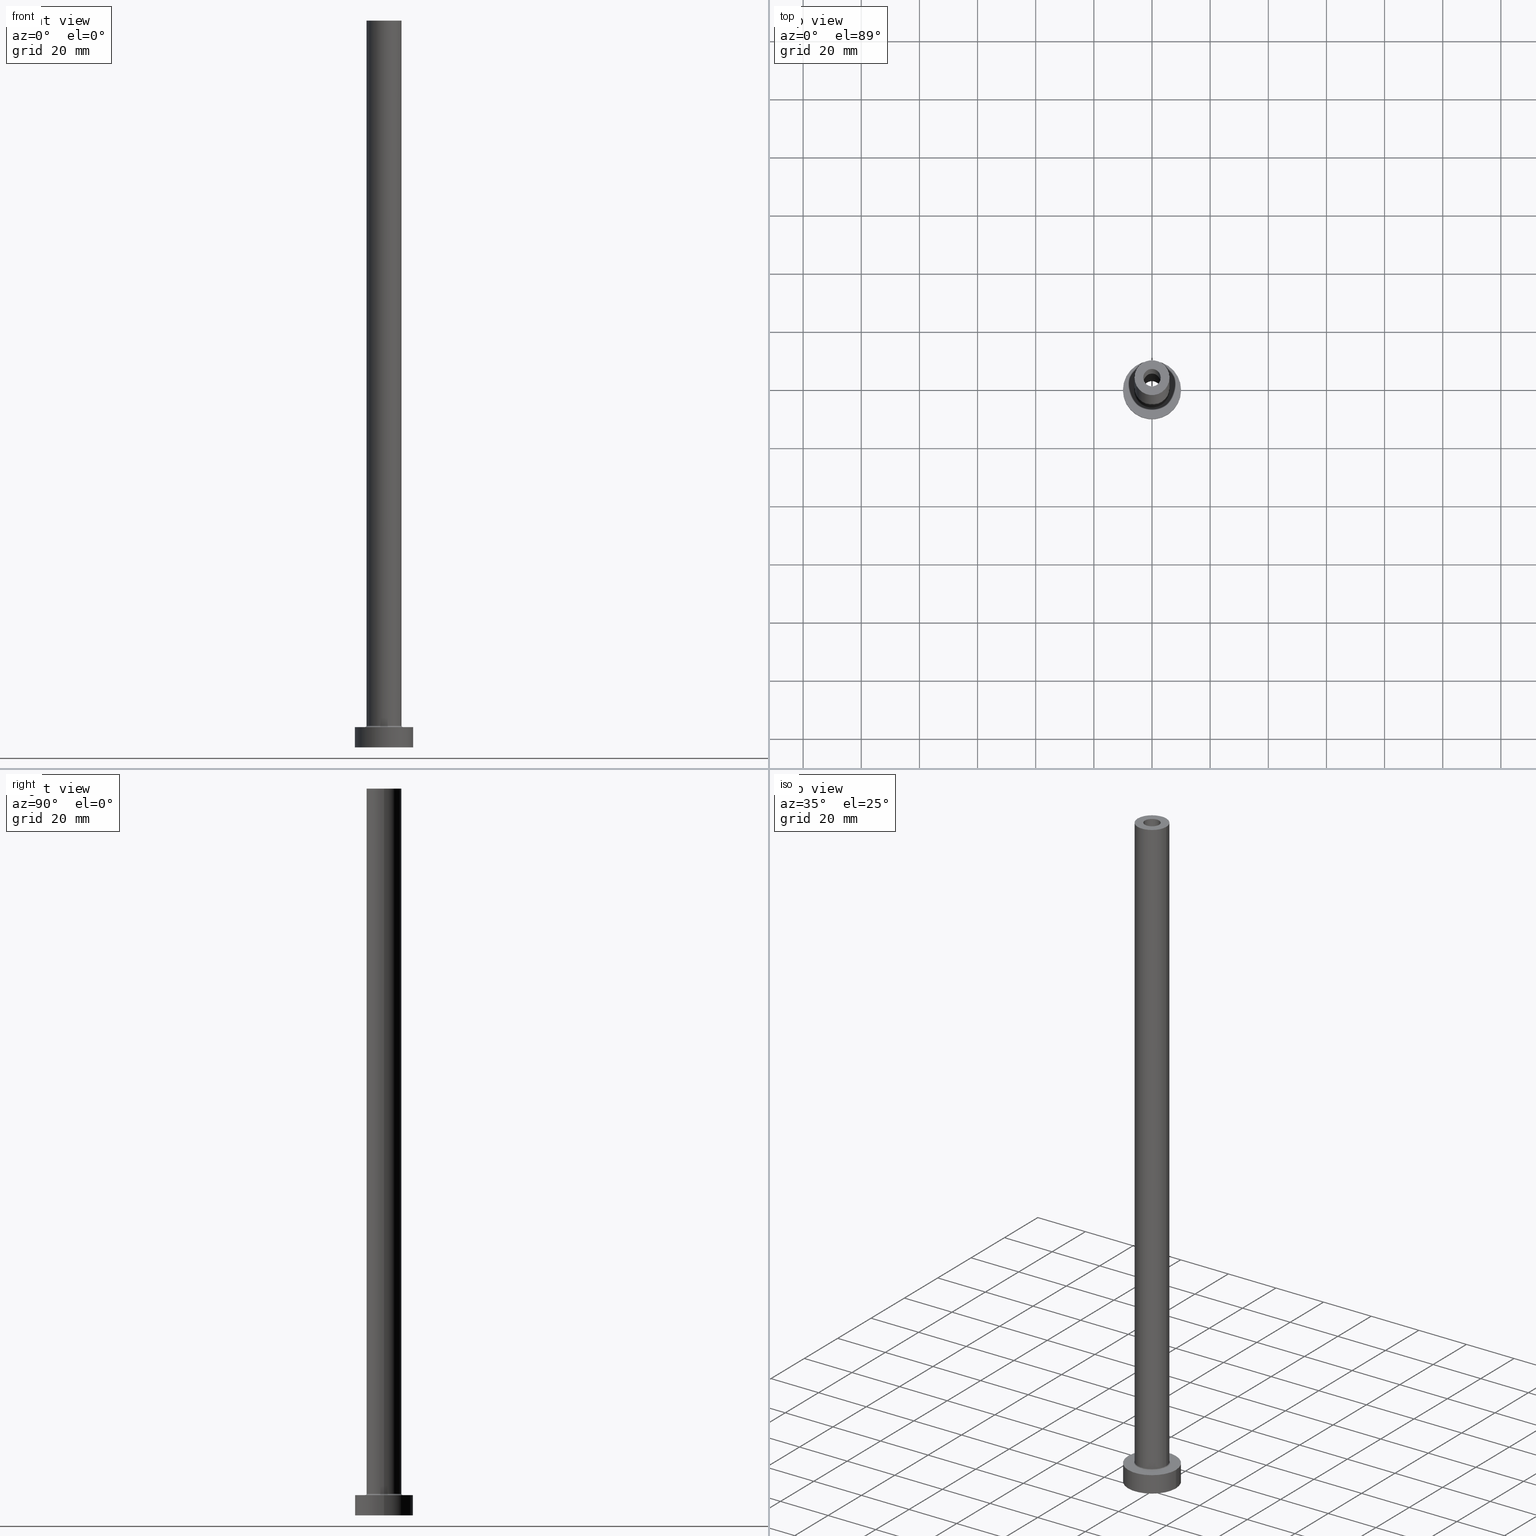
[diagram: canonical four-view strip — front | top / right | iso, engineering-drawing reading convention]
A machine part, canonical four-view strip (front | top / right | iso — engineering-drawing reading convention). The complete STEP part file that produces these views, byte-faithful:
ISO-10303-21;
HEADER;
FILE_DESCRIPTION (( 'STEP AP203' ),
    '1' );
FILE_NAME ('b0cd.STEP',
    '2023-02-13T15:01:19',
    ( '' ),
    ( '' ),
    'SwSTEP 2.0',
    'SolidWorks 2019',
    '' );
FILE_SCHEMA (( 'CONFIG_CONTROL_DESIGN' ));
ENDSEC;

DATA;
#1 = FACE_OUTER_BOUND ( 'NONE', #61, .T. ) ;
#2 = AXIS2_PLACEMENT_3D ( 'NONE', #52, #440, #335 ) ;
#3 = DIRECTION ( 'NONE',  ( 0.000000000000000000, 0.000000000000000000, -1.000000000000000000 ) ) ;
#4 = CARTESIAN_POINT ( 'NONE',  ( -3.000000000000000444, 0.000000000000000000, 205.0000000000000284 ) ) ;
#5 = DIRECTION ( 'NONE',  ( 1.000000000000000000, 0.000000000000000000, 0.000000000000000000 ) ) ;
#6 = CARTESIAN_POINT ( 'NONE',  ( -6.500000000000000888, 7.960204194457796463E-16, 7.500000000000007105 ) ) ;
#7 = AXIS2_PLACEMENT_3D ( 'NONE', #231, #12, #154 ) ;
#8 = CARTESIAN_POINT ( 'NONE',  ( -10.00000000000000000, 0.000000000000000000, 0.000000000000000000 ) ) ;
#9 = FACE_OUTER_BOUND ( 'NONE', #202, .T. ) ;
#10 = CARTESIAN_POINT ( 'NONE',  ( 3.150000000000000355, 3.857637417314163182E-16, 213.9095454429505310 ) ) ;
#11 = ORIENTED_EDGE ( 'NONE', *, *, #206, .T. ) ;
#12 = DIRECTION ( 'NONE',  ( -0.000000000000000000, -0.000000000000000000, -1.000000000000000000 ) ) ;
#13 = CYLINDRICAL_SURFACE ( 'NONE', #128, 6.000000000000000888 ) ;
#14 = VECTOR ( 'NONE', #26, 1000.000000000000000 ) ;
#15 = CARTESIAN_POINT ( 'NONE',  ( 0.000000000000000000, 0.000000000000000000, 7.500000000000007105 ) ) ;
#16 = CALENDAR_DATE ( 2023, 13, 2 ) ;
#17 = EDGE_CURVE ( 'NONE', #126, #93, #286, .T. ) ;
#18 = CARTESIAN_POINT ( 'NONE',  ( 0.000000000000000000, 0.000000000000000000, 250.0000000000000000 ) ) ;
#19 = CARTESIAN_POINT ( 'NONE',  ( -10.00000000000000000, 0.000000000000000000, 7.000000000000000000 ) ) ;
#20 = LOCAL_TIME ( 16, 1, 19.00000000000000000, #453 ) ;
#21 = APPROVAL_STATUS ( 'not_yet_approved' ) ;
#22 = EDGE_LOOP ( 'NONE', ( #299, #389, #422, #266 ) ) ;
#23 = ADVANCED_FACE ( 'NONE', ( #239, #270 ), #97, .T. ) ;
#24 = UNCERTAINTY_MEASURE_WITH_UNIT (LENGTH_MEASURE( 1.000000000000000082E-05 ), #438, 'distance_accuracy_value', 'NONE');
#25 = VERTEX_POINT ( 'NONE', #430 ) ;
#26 = DIRECTION ( 'NONE',  ( 0.000000000000000000, 0.000000000000000000, -1.000000000000000000 ) ) ;
#27 = CARTESIAN_POINT ( 'NONE',  ( 3.150000000000000355, 3.857637417314163182E-16, 0.000000000000000000 ) ) ;
#28 = CALENDAR_DATE ( 2023, 13, 2 ) ;
#29 = TOROIDAL_SURFACE ( 'NONE', #315, 6.500000000000000888, 0.5000000000000000000 ) ;
#30 = VERTEX_POINT ( 'NONE', #88 ) ;
#31 = CARTESIAN_POINT ( 'NONE',  ( 0.000000000000000000, 0.000000000000000000, 0.000000000000000000 ) ) ;
#32 = DATE_AND_TIME ( #28, #425 ) ;
#33 = APPLICATION_CONTEXT ( 'configuration controlled 3d designs of mechanical parts and assemblies' ) ;
#34 = EDGE_LOOP ( 'NONE', ( #204, #193, #274, #443 ) ) ;
#35 = CARTESIAN_POINT ( 'NONE',  ( 0.000000000000000000, 0.000000000000000000, 0.000000000000000000 ) ) ;
#36 = CIRCLE ( 'NONE', #281, 6.000000000000000888 ) ;
#37 = DIRECTION ( 'NONE',  ( 0.000000000000000000, 0.000000000000000000, 1.000000000000000000 ) ) ;
#38 = FACE_OUTER_BOUND ( 'NONE', #396, .T. ) ;
#39 = ADVANCED_FACE ( 'NONE', ( #377 ), #408, .F. ) ;
#40 = CARTESIAN_POINT ( 'NONE',  ( 0.000000000000000000, 0.000000000000000000, 250.0000000000000000 ) ) ;
#41 = DIRECTION ( 'NONE',  ( 0.000000000000000000, 0.000000000000000000, 1.000000000000000000 ) ) ;
#42 = EDGE_CURVE ( 'NONE', #105, #100, #114, .T. ) ;
#43 = CARTESIAN_POINT ( 'NONE',  ( 0.000000000000000000, 0.000000000000000000, 0.000000000000000000 ) ) ;
#44 = DIRECTION ( 'NONE',  ( -0.000000000000000000, -0.000000000000000000, -1.000000000000000000 ) ) ;
#45 = APPROVAL_PERSON_ORGANIZATION ( #177, #394, #161 ) ;
#46 = DIRECTION ( 'NONE',  ( 0.000000000000000000, 0.000000000000000000, -1.000000000000000000 ) ) ;
#47 = FACE_OUTER_BOUND ( 'NONE', #70, .T. ) ;
#48 = CIRCLE ( 'NONE', #82, 6.000000000000000888 ) ;
#49 = CALENDAR_DATE ( 2023, 13, 2 ) ;
#50 = CARTESIAN_POINT ( 'NONE',  ( -3.150000000000000355, 0.000000000000000000, 213.9095454429505310 ) ) ;
#51 = PLANE ( 'NONE',  #221 ) ;
#52 = CARTESIAN_POINT ( 'NONE',  ( 0.000000000000000000, 0.000000000000000000, 7.500000000000007105 ) ) ;
#53 = CIRCLE ( 'NONE', #112, 0.5000000000000004441 ) ;
#54 = PERSON_AND_ORGANIZATION_ROLE ( 'classification_officer' ) ;
#55 = FACE_OUTER_BOUND ( 'NONE', #22, .T. ) ;
#56 = DIRECTION ( 'NONE',  ( 0.000000000000000000, 0.000000000000000000, 1.000000000000000000 ) ) ;
#57 = PLANE ( 'NONE',  #258 ) ;
#58 = EDGE_LOOP ( 'NONE', ( #452, #90, #172, #170 ) ) ;
#59 = CARTESIAN_POINT ( 'NONE',  ( -3.000000000000000444, 0.000000000000000000, 250.0000000000000000 ) ) ;
#60 = AXIS2_PLACEMENT_3D ( 'NONE', #449, #333, #149 ) ;
#61 = EDGE_LOOP ( 'NONE', ( #383, #384 ) ) ;
#62 = VERTEX_POINT ( 'NONE', #340 ) ;
#63 = PERSON_AND_ORGANIZATION ( #392, #101 ) ;
#64 = EDGE_LOOP ( 'NONE', ( #166, #125 ) ) ;
#65 = CARTESIAN_POINT ( 'NONE',  ( 0.000000000000000000, 0.000000000000000000, 7.000000000000000000 ) ) ;
#66 = AXIS2_PLACEMENT_3D ( 'NONE', #412, #291, #376 ) ;
#67 = EDGE_LOOP ( 'NONE', ( #178, #98, #455, #127 ) ) ;
#68 = CALENDAR_DATE ( 2023, 13, 2 ) ;
#69 = CARTESIAN_POINT ( 'NONE',  ( 0.000000000000000000, 0.000000000000000000, 205.0000000000000284 ) ) ;
#70 = EDGE_LOOP ( 'NONE', ( #278, #423 ) ) ;
#71 = CIRCLE ( 'NONE', #66, 0.5000000000000004441 ) ;
#72 = DIRECTION ( 'NONE',  ( 0.000000000000000000, 0.000000000000000000, 1.000000000000000000 ) ) ;
#73 = EDGE_CURVE ( 'NONE', #105, #208, #324, .T. ) ;
#74 = EDGE_CURVE ( 'NONE', #62, #341, #48, .T. ) ;
#75 = DIRECTION ( 'NONE',  ( -1.000000000000000000, 0.000000000000000000, 0.000000000000000000 ) ) ;
#76 = EDGE_CURVE ( 'NONE', #420, #233, #345, .T. ) ;
#77 = ADVANCED_FACE ( 'NONE', ( #329, #325 ), #57, .F. ) ;
#78 = AXIS2_PLACEMENT_3D ( 'NONE', #399, #431, #322 ) ;
#79 = DIRECTION ( 'NONE',  ( -0.000000000000000000, -0.000000000000000000, -1.000000000000000000 ) ) ;
#80 = EDGE_CURVE ( 'NONE', #208, #105, #318, .T. ) ;
#81 = DIRECTION ( 'NONE',  ( 0.000000000000000000, 0.000000000000000000, -1.000000000000000000 ) ) ;
#82 = AXIS2_PLACEMENT_3D ( 'NONE', #18, #373, #417 ) ;
#83 = PERSON_AND_ORGANIZATION ( #392, #101 ) ;
#84 = ORIENTED_EDGE ( 'NONE', *, *, #159, .F. ) ;
#85 = AXIS2_PLACEMENT_3D ( 'NONE', #43, #362, #5 ) ;
#86 = CARTESIAN_POINT ( 'NONE',  ( -6.000000000000000888, 0.000000000000000000, 7.500000000000007105 ) ) ;
#87 =( NAMED_UNIT ( * ) PLANE_ANGLE_UNIT ( ) SI_UNIT ( $, .RADIAN. ) );
#88 = CARTESIAN_POINT ( 'NONE',  ( -3.150000000000000355, 0.000000000000000000, 205.0000000000000284 ) ) ;
#89 = AXIS2_PLACEMENT_3D ( 'NONE', #65, #461, #136 ) ;
#90 = ORIENTED_EDGE ( 'NONE', *, *, #103, .F. ) ;
#91 = DIRECTION ( 'NONE',  ( -0.000000000000000000, -0.000000000000000000, -1.000000000000000000 ) ) ;
#92 = PRODUCT ( 'b0cd', 'b0cd', '', ( #137 ) ) ;
#93 = VERTEX_POINT ( 'NONE', #27 ) ;
#94 = EDGE_LOOP ( 'NONE', ( #272, #198 ) ) ;
#95 = ORIENTED_EDGE ( 'NONE', *, *, #120, .T. ) ;
#96 = DATE_AND_TIME ( #68, #20 ) ;
#97 = PLANE ( 'NONE',  #89 ) ;
#98 = ORIENTED_EDGE ( 'NONE', *, *, #195, .T. ) ;
#99 = DIRECTION ( 'NONE',  ( 0.000000000000000000, 0.000000000000000000, 1.000000000000000000 ) ) ;
#100 = VERTEX_POINT ( 'NONE', #388 ) ;
#101 = ORGANIZATION ( 'NEUR�EN�', 'NEUR�EN�', '' ) ;
#102 = CC_DESIGN_APPROVAL ( #394, ( #156 ) ) ;
#103 = EDGE_CURVE ( 'NONE', #459, #271, #385, .T. ) ;
#104 = DIRECTION ( 'NONE',  ( -1.000000000000000000, 0.000000000000000000, 0.000000000000000000 ) ) ;
#105 = VERTEX_POINT ( 'NONE', #146 ) ;
#106 = DIRECTION ( 'NONE',  ( 1.000000000000000000, 0.000000000000000000, 0.000000000000000000 ) ) ;
#107 = FACE_OUTER_BOUND ( 'NONE', #67, .T. ) ;
#108 = CARTESIAN_POINT ( 'NONE',  ( 0.000000000000000000, 0.000000000000000000, 7.500000000000007105 ) ) ;
#109 = CC_DESIGN_PERSON_AND_ORGANIZATION_ASSIGNMENT ( #83, #54, ( #282 ) ) ;
#110 = PERSON_AND_ORGANIZATION ( #392, #101 ) ;
#111 = DIRECTION ( 'NONE',  ( 1.000000000000000000, 0.000000000000000000, 0.000000000000000000 ) ) ;
#112 = AXIS2_PLACEMENT_3D ( 'NONE', #6, #397, #179 ) ;
#113 = CARTESIAN_POINT ( 'NONE',  ( 0.000000000000000000, 0.000000000000000000, 0.000000000000000000 ) ) ;
#114 = LINE ( 'NONE', #331, #171 ) ;
#115 = DIRECTION ( 'NONE',  ( -0.000000000000000000, -0.000000000000000000, -1.000000000000000000 ) ) ;
#116 = AXIS2_PLACEMENT_3D ( 'NONE', #255, #414, #446 ) ;
#117 = CYLINDRICAL_SURFACE ( 'NONE', #237, 3.150000000000000355 ) ;
#118 = DIRECTION ( 'NONE',  ( -1.000000000000000000, 0.000000000000000000, 0.000000000000000000 ) ) ;
#119 = CIRCLE ( 'NONE', #175, 3.150000000000000355 ) ;
#120 = EDGE_CURVE ( 'NONE', #93, #126, #444, .T. ) ;
#121 = EDGE_LOOP ( 'NONE', ( #296, #227, #343, #232 ) ) ;
#122 = DIRECTION ( 'NONE',  ( 0.000000000000000000, 0.000000000000000000, 1.000000000000000000 ) ) ;
#123 = DIRECTION ( 'NONE',  ( 0.000000000000000000, 0.000000000000000000, -1.000000000000000000 ) ) ;
#124 = ORIENTED_EDGE ( 'NONE', *, *, #159, .T. ) ;
#125 = ORIENTED_EDGE ( 'NONE', *, *, #120, .F. ) ;
#126 = VERTEX_POINT ( 'NONE', #275 ) ;
#127 = ORIENTED_EDGE ( 'NONE', *, *, #153, .F. ) ;
#128 = AXIS2_PLACEMENT_3D ( 'NONE', #151, #91, #228 ) ;
#129 = ORIENTED_EDGE ( 'NONE', *, *, #182, .F. ) ;
#130 = DIRECTION ( 'NONE',  ( 1.000000000000000000, 0.000000000000000000, 0.000000000000000000 ) ) ;
#131 = ORIENTED_EDGE ( 'NONE', *, *, #42, .F. ) ;
#132 = ORIENTED_EDGE ( 'NONE', *, *, #73, .T. ) ;
#133 = ORIENTED_EDGE ( 'NONE', *, *, #162, .T. ) ;
#134 = SHAPE_DEFINITION_REPRESENTATION ( #342, #321 ) ;
#135 = APPROVAL_STATUS ( 'not_yet_approved' ) ;
#136 = DIRECTION ( 'NONE',  ( 1.000000000000000000, 0.000000000000000000, -0.000000000000000000 ) ) ;
#137 = MECHANICAL_CONTEXT ( 'NONE', #210, 'mechanical' ) ;
#138 = VERTEX_POINT ( 'NONE', #4 ) ;
#139 = PLANE ( 'NONE',  #456 ) ;
#140 = PERSON_AND_ORGANIZATION ( #392, #101 ) ;
#141 = AXIS2_PLACEMENT_3D ( 'NONE', #194, #81, #118 ) ;
#142 = CYLINDRICAL_SURFACE ( 'NONE', #144, 3.000000000000000444 ) ;
#143 = LINE ( 'NONE', #244, #375 ) ;
#144 = AXIS2_PLACEMENT_3D ( 'NONE', #40, #3, #75 ) ;
#145 = CYLINDRICAL_SURFACE ( 'NONE', #253, 10.00000000000000000 ) ;
#146 = CARTESIAN_POINT ( 'NONE',  ( 3.000000000000000444, 3.673940397442059868E-16, 250.0000000000000000 ) ) ;
#147 = DIRECTION ( 'NONE',  ( 0.000000000000000000, 0.000000000000000000, -1.000000000000000000 ) ) ;
#148 = ADVANCED_FACE ( 'NONE', ( #216 ), #29, .F. ) ;
#149 = DIRECTION ( 'NONE',  ( 1.000000000000000000, 0.000000000000000000, 0.000000000000000000 ) ) ;
#150 = AXIS2_PLACEMENT_3D ( 'NONE', #287, #380, #152 ) ;
#151 = CARTESIAN_POINT ( 'NONE',  ( 0.000000000000000000, 0.000000000000000000, 250.0000000000000000 ) ) ;
#152 = DIRECTION ( 'NONE',  ( 1.000000000000000000, 0.000000000000000000, 0.000000000000000000 ) ) ;
#153 = EDGE_CURVE ( 'NONE', #459, #309, #143, .T. ) ;
#154 = DIRECTION ( 'NONE',  ( -1.000000000000000000, 0.000000000000000000, 0.000000000000000000 ) ) ;
#155 = VECTOR ( 'NONE', #416, 1000.000000000000000 ) ;
#156 = PRODUCT_DEFINITION_FORMATION_WITH_SPECIFIED_SOURCE ( 'LIBOVOLN�', '', #92, .NOT_KNOWN. ) ;
#157 = PERSON_AND_ORGANIZATION_ROLE ( 'creator' ) ;
#158 = CC_DESIGN_PERSON_AND_ORGANIZATION_ASSIGNMENT ( #63, #201, ( #401 ) ) ;
#159 = EDGE_CURVE ( 'NONE', #420, #25, #53, .T. ) ;
#160 = DIRECTION ( 'NONE',  ( 0.000000000000000000, 0.000000000000000000, 1.000000000000000000 ) ) ;
#161 = APPROVAL_ROLE ( '' ) ;
#162 = EDGE_CURVE ( 'NONE', #100, #138, #273, .T. ) ;
#163 = CARTESIAN_POINT ( 'NONE',  ( 10.00000000000000000, 1.224646799147353256E-15, 0.000000000000000000 ) ) ;
#164 = DIRECTION ( 'NONE',  ( 1.000000000000000000, 0.000000000000000000, 0.000000000000000000 ) ) ;
#165 = APPROVAL_PERSON_ORGANIZATION ( #140, #339, #174 ) ;
#166 = ORIENTED_EDGE ( 'NONE', *, *, #17, .F. ) ;
#167 = APPROVAL_ROLE ( '' ) ;
#168 = EDGE_CURVE ( 'NONE', #269, #93, #323, .T. ) ;
#169 = FACE_OUTER_BOUND ( 'NONE', #34, .T. ) ;
#170 = ORIENTED_EDGE ( 'NONE', *, *, #289, .T. ) ;
#171 = VECTOR ( 'NONE', #123, 1000.000000000000000 ) ;
#172 = ORIENTED_EDGE ( 'NONE', *, *, #153, .T. ) ;
#173 = EDGE_LOOP ( 'NONE', ( #382, #426 ) ) ;
#174 = APPROVAL_ROLE ( '' ) ;
#175 = AXIS2_PLACEMENT_3D ( 'NONE', #69, #242, #395 ) ;
#176 = ORIENTED_EDGE ( 'NONE', *, *, #367, .T. ) ;
#177 = PERSON_AND_ORGANIZATION ( #392, #101 ) ;
#178 = ORIENTED_EDGE ( 'NONE', *, *, #241, .F. ) ;
#179 = DIRECTION ( 'NONE',  ( -1.000000000000000000, 1.224646799147351482E-16, 0.000000000000000000 ) ) ;
#180 = AXIS2_PLACEMENT_3D ( 'NONE', #184, #37, #256 ) ;
#181 = AXIS2_PLACEMENT_3D ( 'NONE', #200, #247, #317 ) ;
#182 = EDGE_CURVE ( 'NONE', #341, #420, #280, .T. ) ;
#183 = CARTESIAN_POINT ( 'NONE',  ( -6.000000000000000888, 0.000000000000000000, 250.0000000000000000 ) ) ;
#184 = CARTESIAN_POINT ( 'NONE',  ( 0.000000000000000000, 0.000000000000000000, 7.500000000000007105 ) ) ;
#185 = CYLINDRICAL_SURFACE ( 'NONE', #78, 10.00000000000000000 ) ;
#186 = CARTESIAN_POINT ( 'NONE',  ( 0.000000000000000000, 0.000000000000000000, 205.0000000000000284 ) ) ;
#187 = FACE_OUTER_BOUND ( 'NONE', #264, .T. ) ;
#188 = DATE_AND_TIME ( #49, #238 ) ;
#189 = VECTOR ( 'NONE', #403, 1000.000000000000000 ) ;
#190 = LINE ( 'NONE', #50, #398 ) ;
#191 = CC_DESIGN_PERSON_AND_ORGANIZATION_ASSIGNMENT ( #290, #157, ( #156 ) ) ;
#192 = EDGE_CURVE ( 'NONE', #460, #309, #432, .T. ) ;
#193 = ORIENTED_EDGE ( 'NONE', *, *, #249, .F. ) ;
#194 = CARTESIAN_POINT ( 'NONE',  ( 0.000000000000000000, 0.000000000000000000, 250.0000000000000000 ) ) ;
#195 = EDGE_CURVE ( 'NONE', #271, #460, #357, .T. ) ;
#196 = DIRECTION ( 'NONE',  ( 1.000000000000000000, 0.000000000000000000, 0.000000000000000000 ) ) ;
#197 = ADVANCED_FACE ( 'NONE', ( #214 ), #355, .F. ) ;
#198 = ORIENTED_EDGE ( 'NONE', *, *, #192, .F. ) ;
#199 = ORIENTED_EDGE ( 'NONE', *, *, #251, .T. ) ;
#200 = CARTESIAN_POINT ( 'NONE',  ( 0.000000000000000000, 0.000000000000000000, 7.000000000000000000 ) ) ;
#201 = PERSON_AND_ORGANIZATION_ROLE ( 'creator' ) ;
#202 = EDGE_LOOP ( 'NONE', ( #131, #132, #386, #427 ) ) ;
#203 = CC_DESIGN_DATE_AND_TIME_ASSIGNMENT ( #294, #445, ( #282 ) ) ;
#204 = ORIENTED_EDGE ( 'NONE', *, *, #226, .F. ) ;
#205 = CIRCLE ( 'NONE', #405, 3.150000000000000355 ) ;
#206 = EDGE_CURVE ( 'NONE', #30, #269, #119, .T. ) ;
#207 = ADVANCED_FACE ( 'NONE', ( #38 ), #245, .F. ) ;
#208 = VERTEX_POINT ( 'NONE', #250 ) ;
#209 = DIRECTION ( 'NONE',  ( 1.000000000000000000, 0.000000000000000000, 0.000000000000000000 ) ) ;
#210 = APPLICATION_CONTEXT ( 'configuration controlled 3d designs of mechanical parts and assemblies' ) ;
#211 = DIRECTION ( 'NONE',  ( 1.000000000000000000, 0.000000000000000000, 0.000000000000000000 ) ) ;
#212 = ORIENTED_EDGE ( 'NONE', *, *, #433, .T. ) ;
#213 = CIRCLE ( 'NONE', #230, 10.00000000000000000 ) ;
#214 = FACE_OUTER_BOUND ( 'NONE', #229, .T. ) ;
#215 = DIRECTION ( 'NONE',  ( 1.000000000000000000, 0.000000000000000000, -0.000000000000000000 ) ) ;
#216 = FACE_OUTER_BOUND ( 'NONE', #223, .T. ) ;
#217 = CC_DESIGN_APPROVAL ( #339, ( #401 ) ) ;
#218 = FACE_BOUND ( 'NONE', #349, .T. ) ;
#219 = CARTESIAN_POINT ( 'NONE',  ( 0.000000000000000000, 0.000000000000000000, 7.000000000000000000 ) ) ;
#220 = CARTESIAN_POINT ( 'NONE',  ( 6.000000000000000888, 7.347880794884120722E-16, 250.0000000000000000 ) ) ;
#221 = AXIS2_PLACEMENT_3D ( 'NONE', #328, #259, #413 ) ;
#222 = CC_DESIGN_APPROVAL ( #279, ( #282 ) ) ;
#223 = EDGE_LOOP ( 'NONE', ( #243, #124, #301, #378 ) ) ;
#224 = CC_DESIGN_DATE_AND_TIME_ASSIGNMENT ( #96, #306, ( #401 ) ) ;
#225 = EDGE_CURVE ( 'NONE', #303, #25, #441, .T. ) ;
#226 = EDGE_CURVE ( 'NONE', #62, #233, #372, .T. ) ;
#227 = ORIENTED_EDGE ( 'NONE', *, *, #42, .T. ) ;
#228 = DIRECTION ( 'NONE',  ( -1.000000000000000000, 0.000000000000000000, 0.000000000000000000 ) ) ;
#229 = EDGE_LOOP ( 'NONE', ( #11, #338, #95, #236 ) ) ;
#230 = AXIS2_PLACEMENT_3D ( 'NONE', #418, #122, #164 ) ;
#231 = CARTESIAN_POINT ( 'NONE',  ( 0.000000000000000000, 0.000000000000000000, 250.0000000000000000 ) ) ;
#232 = ORIENTED_EDGE ( 'NONE', *, *, #267, .F. ) ;
#233 = VERTEX_POINT ( 'NONE', #406 ) ;
#234 = AXIS2_PLACEMENT_3D ( 'NONE', #363, #429, #436 ) ;
#235 = DESIGN_CONTEXT ( 'detailed design', #33, 'design' ) ;
#236 = ORIENTED_EDGE ( 'NONE', *, *, #407, .F. ) ;
#237 = AXIS2_PLACEMENT_3D ( 'NONE', #260, #334, #379 ) ;
#238 = LOCAL_TIME ( 16, 1, 19.00000000000000000, #371 ) ;
#239 = FACE_BOUND ( 'NONE', #374, .T. ) ;
#240 = ADVANCED_FACE ( 'NONE', ( #218, #47 ), #51, .T. ) ;
#241 = EDGE_CURVE ( 'NONE', #271, #459, #213, .T. ) ;
#242 = DIRECTION ( 'NONE',  ( 0.000000000000000000, 0.000000000000000000, 1.000000000000000000 ) ) ;
#243 = ORIENTED_EDGE ( 'NONE', *, *, #76, .F. ) ;
#244 = CARTESIAN_POINT ( 'NONE',  ( -10.00000000000000000, 0.000000000000000000, 7.000000000000000000 ) ) ;
#245 = TOROIDAL_SURFACE ( 'NONE', #180, 6.500000000000000888, 0.5000000000000000000 ) ;
#246 = FACE_OUTER_BOUND ( 'NONE', #58, .T. ) ;
#247 = DIRECTION ( 'NONE',  ( 0.000000000000000000, 0.000000000000000000, 1.000000000000000000 ) ) ;
#248 = APPROVAL_STATUS ( 'not_yet_approved' ) ;
#249 = EDGE_CURVE ( 'NONE', #341, #62, #36, .T. ) ;
#250 = CARTESIAN_POINT ( 'NONE',  ( -3.000000000000000444, 0.000000000000000000, 250.0000000000000000 ) ) ;
#251 = EDGE_CURVE ( 'NONE', #233, #420, #366, .T. ) ;
#252 = DIRECTION ( 'NONE',  ( 0.000000000000000000, 0.000000000000000000, 1.000000000000000000 ) ) ;
#253 = AXIS2_PLACEMENT_3D ( 'NONE', #283, #365, #316 ) ;
#254 = DIRECTION ( 'NONE',  ( 1.000000000000000000, 0.000000000000000000, 0.000000000000000000 ) ) ;
#255 = CARTESIAN_POINT ( 'NONE',  ( 0.000000000000000000, 0.000000000000000000, 250.0000000000000000 ) ) ;
#256 = DIRECTION ( 'NONE',  ( 1.000000000000000000, 0.000000000000000000, 0.000000000000000000 ) ) ;
#257 = PERSON_AND_ORGANIZATION_ROLE ( 'design_supplier' ) ;
#258 = AXIS2_PLACEMENT_3D ( 'NONE', #113, #160, #293 ) ;
#259 = DIRECTION ( 'NONE',  ( 0.000000000000000000, 0.000000000000000000, 1.000000000000000000 ) ) ;
#260 = CARTESIAN_POINT ( 'NONE',  ( 0.000000000000000000, 0.000000000000000000, 213.9095454429505310 ) ) ;
#261 = ADVANCED_FACE ( 'NONE', ( #55 ), #117, .F. ) ;
#262 = CARTESIAN_POINT ( 'NONE',  ( 0.000000000000000000, 0.000000000000000000, 250.0000000000000000 ) ) ;
#263 = ORIENTED_EDGE ( 'NONE', *, *, #370, .F. ) ;
#264 = EDGE_LOOP ( 'NONE', ( #312, #351, #199, #129 ) ) ;
#265 = PRODUCT_RELATED_PRODUCT_CATEGORY ( 'detail', '', ( #92 ) ) ;
#266 = ORIENTED_EDGE ( 'NONE', *, *, #17, .T. ) ;
#267 = EDGE_CURVE ( 'NONE', #208, #138, #451, .T. ) ;
#268 = VECTOR ( 'NONE', #79, 1000.000000000000000 ) ;
#269 = VERTEX_POINT ( 'NONE', #350 ) ;
#270 = FACE_OUTER_BOUND ( 'NONE', #173, .T. ) ;
#271 = VERTEX_POINT ( 'NONE', #390 ) ;
#272 = ORIENTED_EDGE ( 'NONE', *, *, #289, .F. ) ;
#273 = CIRCLE ( 'NONE', #336, 3.000000000000000444 ) ;
#274 = ORIENTED_EDGE ( 'NONE', *, *, #182, .T. ) ;
#275 = CARTESIAN_POINT ( 'NONE',  ( -3.150000000000000355, 0.000000000000000000, 0.000000000000000000 ) ) ;
#276 = PERSON_AND_ORGANIZATION_ROLE ( 'design_owner' ) ;
#277 = ORIENTED_EDGE ( 'NONE', *, *, #80, .F. ) ;
#278 = ORIENTED_EDGE ( 'NONE', *, *, #249, .T. ) ;
#279 = APPROVAL ( #21, 'NEUR�EN�' ) ;
#280 = LINE ( 'NONE', #183, #189 ) ;
#281 = AXIS2_PLACEMENT_3D ( 'NONE', #262, #450, #297 ) ;
#282 = SECURITY_CLASSIFICATION ( '', '', #410 ) ;
#283 = CARTESIAN_POINT ( 'NONE',  ( 0.000000000000000000, 0.000000000000000000, 7.000000000000000000 ) ) ;
#284 = ADVANCED_FACE ( 'NONE', ( #393, #1 ), #139, .F. ) ;
#285 = DIRECTION ( 'NONE',  ( 0.000000000000000000, 0.000000000000000000, 1.000000000000000000 ) ) ;
#286 = CIRCLE ( 'NONE', #310, 3.150000000000000355 ) ;
#287 = CARTESIAN_POINT ( 'NONE',  ( 0.000000000000000000, 0.000000000000000000, 250.0000000000000000 ) ) ;
#288 = AXIS2_PLACEMENT_3D ( 'NONE', #35, #285, #111 ) ;
#289 = EDGE_CURVE ( 'NONE', #309, #460, #419, .T. ) ;
#290 = PERSON_AND_ORGANIZATION ( #392, #101 ) ;
#291 = DIRECTION ( 'NONE',  ( 0.000000000000000000, -1.000000000000000000, 0.000000000000000000 ) ) ;
#292 = ADVANCED_FACE ( 'NONE', ( #107 ), #145, .T. ) ;
#293 = DIRECTION ( 'NONE',  ( 1.000000000000000000, 0.000000000000000000, -0.000000000000000000 ) ) ;
#294 = DATE_AND_TIME ( #16, #448 ) ;
#295 = ADVANCED_FACE ( 'NONE', ( #246 ), #185, .T. ) ;
#296 = ORIENTED_EDGE ( 'NONE', *, *, #80, .T. ) ;
#297 = DIRECTION ( 'NONE',  ( 1.000000000000000000, 0.000000000000000000, 0.000000000000000000 ) ) ;
#298 = AXIS2_PLACEMENT_3D ( 'NONE', #31, #99, #209 ) ;
#299 = ORIENTED_EDGE ( 'NONE', *, *, #168, .F. ) ;
#300 = DATE_AND_TIME ( #353, #360 ) ;
#301 = ORIENTED_EDGE ( 'NONE', *, *, #225, .F. ) ;
#302 = ADVANCED_FACE ( 'NONE', ( #9 ), #142, .F. ) ;
#303 = VERTEX_POINT ( 'NONE', #364 ) ;
#304 = COORDINATED_UNIVERSAL_TIME_OFFSET ( 1, 0, .AHEAD. ) ;
#305 = AXIS2_PLACEMENT_3D ( 'NONE', #15, #56, #196 ) ;
#306 = DATE_TIME_ROLE ( 'creation_date' ) ;
#307 = ORIENTED_EDGE ( 'NONE', *, *, #251, .F. ) ;
#308 = CC_DESIGN_PERSON_AND_ORGANIZATION_ASSIGNMENT ( #110, #276, ( #92 ) ) ;
#309 = VERTEX_POINT ( 'NONE', #8 ) ;
#310 = AXIS2_PLACEMENT_3D ( 'NONE', #347, #458, #130 ) ;
#311 = EDGE_CURVE ( 'NONE', #269, #30, #205, .T. ) ;
#312 = ORIENTED_EDGE ( 'NONE', *, *, #74, .F. ) ;
#313 = APPLICATION_PROTOCOL_DEFINITION ( 'international standard', 'config_control_design', 1994, #210 ) ;
#314 = CARTESIAN_POINT ( 'NONE',  ( 0.000000000000000000, 0.000000000000000000, 213.9095454429505310 ) ) ;
#315 = AXIS2_PLACEMENT_3D ( 'NONE', #108, #41, #106 ) ;
#316 = DIRECTION ( 'NONE',  ( -1.000000000000000000, 0.000000000000000000, 0.000000000000000000 ) ) ;
#317 = DIRECTION ( 'NONE',  ( 1.000000000000000000, 0.000000000000000000, 0.000000000000000000 ) ) ;
#318 = CIRCLE ( 'NONE', #116, 3.000000000000000444 ) ;
#319 = CIRCLE ( 'NONE', #60, 3.000000000000000444 ) ;
#320 = CIRCLE ( 'NONE', #327, 6.500000000000000888 ) ;
#321 = ADVANCED_BREP_SHAPE_REPRESENTATION ( 'b0cd', ( #354, #298 ), #447 ) ;
#322 = DIRECTION ( 'NONE',  ( -1.000000000000000000, 0.000000000000000000, 0.000000000000000000 ) ) ;
#323 = LINE ( 'NONE', #10, #381 ) ;
#324 = CIRCLE ( 'NONE', #150, 3.000000000000000444 ) ;
#325 = FACE_OUTER_BOUND ( 'NONE', #94, .T. ) ;
#326 = APPROVAL_DATE_TIME ( #188, #394 ) ;
#327 = AXIS2_PLACEMENT_3D ( 'NONE', #219, #369, #409 ) ;
#328 = CARTESIAN_POINT ( 'NONE',  ( 0.000000000000000000, 0.000000000000000000, 250.0000000000000000 ) ) ;
#329 = FACE_BOUND ( 'NONE', #64, .T. ) ;
#330 = COORDINATED_UNIVERSAL_TIME_OFFSET ( 1, 0, .AHEAD. ) ;
#331 = CARTESIAN_POINT ( 'NONE',  ( 3.000000000000000444, 3.673940397442059868E-16, 250.0000000000000000 ) ) ;
#332 = CLOSED_SHELL ( 'NONE', ( #39, #197, #148, #348, #292, #295, #23, #77, #361, #240, #207, #261, #284, #302 ) ) ;
#333 = DIRECTION ( 'NONE',  ( 0.000000000000000000, 0.000000000000000000, 1.000000000000000000 ) ) ;
#334 = DIRECTION ( 'NONE',  ( 0.000000000000000000, 0.000000000000000000, -1.000000000000000000 ) ) ;
#335 = DIRECTION ( 'NONE',  ( 1.000000000000000000, 0.000000000000000000, 0.000000000000000000 ) ) ;
#336 = AXIS2_PLACEMENT_3D ( 'NONE', #186, #72, #211 ) ;
#337 = APPROVAL_PERSON_ORGANIZATION ( #344, #279, #167 ) ;
#338 = ORIENTED_EDGE ( 'NONE', *, *, #168, .T. ) ;
#339 = APPROVAL ( #248, 'NEUR�EN�' ) ;
#340 = CARTESIAN_POINT ( 'NONE',  ( 6.000000000000000888, 7.347880794884120722E-16, 250.0000000000000000 ) ) ;
#341 = VERTEX_POINT ( 'NONE', #368 ) ;
#342 = PRODUCT_DEFINITION_SHAPE ( 'NONE', 'NONE',  #401 ) ;
#343 = ORIENTED_EDGE ( 'NONE', *, *, #433, .F. ) ;
#344 = PERSON_AND_ORGANIZATION ( #392, #101 ) ;
#345 = CIRCLE ( 'NONE', #2, 6.000000000000000888 ) ;
#346 = EDGE_LOOP ( 'NONE', ( #212, #133 ) ) ;
#347 = CARTESIAN_POINT ( 'NONE',  ( 0.000000000000000000, 0.000000000000000000, 0.000000000000000000 ) ) ;
#348 = ADVANCED_FACE ( 'NONE', ( #187 ), #13, .T. ) ;
#349 = EDGE_LOOP ( 'NONE', ( #277, #411 ) ) ;
#350 = CARTESIAN_POINT ( 'NONE',  ( 3.150000000000000355, 3.857637417314163182E-16, 205.0000000000000284 ) ) ;
#351 = ORIENTED_EDGE ( 'NONE', *, *, #226, .T. ) ;
#352 = ORIENTED_EDGE ( 'NONE', *, *, #225, .T. ) ;
#353 = CALENDAR_DATE ( 2023, 13, 2 ) ;
#354 = MANIFOLD_SOLID_BREP ( 'Odebrat vysunut�m4', #332 ) ;
#355 = CYLINDRICAL_SURFACE ( 'NONE', #359, 3.150000000000000355 ) ;
#356 = ORIENTED_EDGE ( 'NONE', *, *, #370, .T. ) ;
#357 = LINE ( 'NONE', #400, #268 ) ;
#358 = APPLICATION_PROTOCOL_DEFINITION ( 'international standard', 'config_control_design', 1994, #33 ) ;
#359 = AXIS2_PLACEMENT_3D ( 'NONE', #314, #428, #104 ) ;
#360 = LOCAL_TIME ( 16, 1, 19.00000000000000000, #304 ) ;
#361 = ADVANCED_FACE ( 'NONE', ( #169 ), #454, .T. ) ;
#362 = DIRECTION ( 'NONE',  ( 0.000000000000000000, 0.000000000000000000, 1.000000000000000000 ) ) ;
#363 = CARTESIAN_POINT ( 'NONE',  ( 0.000000000000000000, 0.000000000000000000, 0.000000000000000000 ) ) ;
#364 = CARTESIAN_POINT ( 'NONE',  ( 6.500000000000000888, 0.000000000000000000, 7.000000000000002665 ) ) ;
#365 = DIRECTION ( 'NONE',  ( -0.000000000000000000, -0.000000000000000000, -1.000000000000000000 ) ) ;
#366 = CIRCLE ( 'NONE', #305, 6.000000000000000888 ) ;
#367 = EDGE_CURVE ( 'NONE', #233, #303, #71, .T. ) ;
#368 = CARTESIAN_POINT ( 'NONE',  ( -6.000000000000000888, 0.000000000000000000, 250.0000000000000000 ) ) ;
#369 = DIRECTION ( 'NONE',  ( -0.000000000000000000, -0.000000000000000000, -1.000000000000000000 ) ) ;
#370 = EDGE_CURVE ( 'NONE', #25, #303, #320, .T. ) ;
#371 = COORDINATED_UNIVERSAL_TIME_OFFSET ( 1, 0, .AHEAD. ) ;
#372 = LINE ( 'NONE', #220, #155 ) ;
#373 = DIRECTION ( 'NONE',  ( 0.000000000000000000, 0.000000000000000000, 1.000000000000000000 ) ) ;
#374 = EDGE_LOOP ( 'NONE', ( #352, #356 ) ) ;
#375 = VECTOR ( 'NONE', #44, 1000.000000000000000 ) ;
#376 = DIRECTION ( 'NONE',  ( 0.000000000000000000, 0.000000000000000000, -1.000000000000000000 ) ) ;
#377 = FACE_OUTER_BOUND ( 'NONE', #121, .T. ) ;
#378 = ORIENTED_EDGE ( 'NONE', *, *, #367, .F. ) ;
#379 = DIRECTION ( 'NONE',  ( -1.000000000000000000, 0.000000000000000000, 0.000000000000000000 ) ) ;
#380 = DIRECTION ( 'NONE',  ( 0.000000000000000000, 0.000000000000000000, 1.000000000000000000 ) ) ;
#381 = VECTOR ( 'NONE', #147, 1000.000000000000000 ) ;
#382 = ORIENTED_EDGE ( 'NONE', *, *, #103, .T. ) ;
#383 = ORIENTED_EDGE ( 'NONE', *, *, #206, .F. ) ;
#384 = ORIENTED_EDGE ( 'NONE', *, *, #311, .F. ) ;
#385 = CIRCLE ( 'NONE', #181, 10.00000000000000000 ) ;
#386 = ORIENTED_EDGE ( 'NONE', *, *, #267, .T. ) ;
#387 = APPROVAL_DATE_TIME ( #300, #279 ) ;
#388 = CARTESIAN_POINT ( 'NONE',  ( 3.000000000000000444, 3.673940397442059868E-16, 205.0000000000000284 ) ) ;
#389 = ORIENTED_EDGE ( 'NONE', *, *, #311, .T. ) ;
#390 = CARTESIAN_POINT ( 'NONE',  ( 10.00000000000000000, 1.224646799147353256E-15, 7.000000000000000000 ) ) ;
#391 = APPROVAL_DATE_TIME ( #32, #339 ) ;
#392 = PERSON ( 'NEUR�EN�', 'NEUR�EN�', 'NEUR�EN�', ('NEUR�EN�'), ('NEUR�EN�'), ('NEUR�EN�') ) ;
#393 = FACE_BOUND ( 'NONE', #346, .T. ) ;
#394 = APPROVAL ( #135, 'NEUR�EN�' ) ;
#395 = DIRECTION ( 'NONE',  ( 1.000000000000000000, 0.000000000000000000, 0.000000000000000000 ) ) ;
#396 = EDGE_LOOP ( 'NONE', ( #84, #307, #176, #263 ) ) ;
#397 = DIRECTION ( 'NONE',  ( 1.224646799147353207E-16, 1.000000000000000000, -0.000000000000000000 ) ) ;
#398 = VECTOR ( 'NONE', #46, 1000.000000000000000 ) ;
#399 = CARTESIAN_POINT ( 'NONE',  ( 0.000000000000000000, 0.000000000000000000, 7.000000000000000000 ) ) ;
#400 = CARTESIAN_POINT ( 'NONE',  ( 10.00000000000000000, 1.224646799147353256E-15, 7.000000000000000000 ) ) ;
#401 = PRODUCT_DEFINITION ( 'NEZN�M�', '', #156, #235 ) ;
#402 = DIRECTION ( 'NONE',  ( 0.000000000000000000, 0.000000000000000000, 1.000000000000000000 ) ) ;
#403 = DIRECTION ( 'NONE',  ( -0.000000000000000000, -0.000000000000000000, -1.000000000000000000 ) ) ;
#404 = DIRECTION ( 'NONE',  ( 1.000000000000000000, 0.000000000000000000, 0.000000000000000000 ) ) ;
#405 = AXIS2_PLACEMENT_3D ( 'NONE', #437, #252, #404 ) ;
#406 = CARTESIAN_POINT ( 'NONE',  ( 6.000000000000000888, 7.347880794884120722E-16, 7.500000000000007105 ) ) ;
#407 = EDGE_CURVE ( 'NONE', #30, #126, #190, .T. ) ;
#408 = CYLINDRICAL_SURFACE ( 'NONE', #141, 3.000000000000000444 ) ;
#409 = DIRECTION ( 'NONE',  ( 1.000000000000000000, 0.000000000000000000, 0.000000000000000000 ) ) ;
#410 = SECURITY_CLASSIFICATION_LEVEL ( 'unclassified' ) ;
#411 = ORIENTED_EDGE ( 'NONE', *, *, #73, .F. ) ;
#412 = CARTESIAN_POINT ( 'NONE',  ( 6.500000000000000888, 0.000000000000000000, 7.500000000000007105 ) ) ;
#413 = DIRECTION ( 'NONE',  ( 1.000000000000000000, 0.000000000000000000, -0.000000000000000000 ) ) ;
#414 = DIRECTION ( 'NONE',  ( 0.000000000000000000, 0.000000000000000000, 1.000000000000000000 ) ) ;
#415 = AXIS2_PLACEMENT_3D ( 'NONE', #439, #115, #254 ) ;
#416 = DIRECTION ( 'NONE',  ( -0.000000000000000000, -0.000000000000000000, -1.000000000000000000 ) ) ;
#417 = DIRECTION ( 'NONE',  ( 1.000000000000000000, 0.000000000000000000, 0.000000000000000000 ) ) ;
#418 = CARTESIAN_POINT ( 'NONE',  ( 0.000000000000000000, 0.000000000000000000, 7.000000000000000000 ) ) ;
#419 = CIRCLE ( 'NONE', #85, 10.00000000000000000 ) ;
#420 = VERTEX_POINT ( 'NONE', #86 ) ;
#421 = COORDINATED_UNIVERSAL_TIME_OFFSET ( 1, 0, .AHEAD. ) ;
#422 = ORIENTED_EDGE ( 'NONE', *, *, #407, .T. ) ;
#423 = ORIENTED_EDGE ( 'NONE', *, *, #74, .T. ) ;
#424 =( NAMED_UNIT ( * ) SI_UNIT ( $, .STERADIAN. ) SOLID_ANGLE_UNIT ( ) );
#425 = LOCAL_TIME ( 16, 1, 19.00000000000000000, #421 ) ;
#426 = ORIENTED_EDGE ( 'NONE', *, *, #241, .T. ) ;
#427 = ORIENTED_EDGE ( 'NONE', *, *, #162, .F. ) ;
#428 = DIRECTION ( 'NONE',  ( 0.000000000000000000, 0.000000000000000000, -1.000000000000000000 ) ) ;
#429 = DIRECTION ( 'NONE',  ( -0.000000000000000000, -0.000000000000000000, -1.000000000000000000 ) ) ;
#430 = CARTESIAN_POINT ( 'NONE',  ( -6.500000000000000888, 7.960204194457796463E-16, 7.000000000000002665 ) ) ;
#431 = DIRECTION ( 'NONE',  ( -0.000000000000000000, -0.000000000000000000, -1.000000000000000000 ) ) ;
#432 = CIRCLE ( 'NONE', #288, 10.00000000000000000 ) ;
#433 = EDGE_CURVE ( 'NONE', #138, #100, #319, .T. ) ;
#434 = CC_DESIGN_SECURITY_CLASSIFICATION ( #282, ( #156 ) ) ;
#435 = CARTESIAN_POINT ( 'NONE',  ( 0.000000000000000000, 0.000000000000000000, 205.0000000000000284 ) ) ;
#436 = DIRECTION ( 'NONE',  ( 1.000000000000000000, 0.000000000000000000, 0.000000000000000000 ) ) ;
#437 = CARTESIAN_POINT ( 'NONE',  ( 0.000000000000000000, 0.000000000000000000, 205.0000000000000284 ) ) ;
#438 =( LENGTH_UNIT ( ) NAMED_UNIT ( * ) SI_UNIT ( .MILLI., .METRE. ) );
#439 = CARTESIAN_POINT ( 'NONE',  ( 0.000000000000000000, 0.000000000000000000, 7.000000000000000000 ) ) ;
#440 = DIRECTION ( 'NONE',  ( 0.000000000000000000, 0.000000000000000000, 1.000000000000000000 ) ) ;
#441 = CIRCLE ( 'NONE', #415, 6.500000000000000888 ) ;
#442 = PERSON_AND_ORGANIZATION ( #392, #101 ) ;
#443 = ORIENTED_EDGE ( 'NONE', *, *, #76, .T. ) ;
#444 = CIRCLE ( 'NONE', #234, 3.150000000000000355 ) ;
#445 = DATE_TIME_ROLE ( 'classification_date' ) ;
#446 = DIRECTION ( 'NONE',  ( 1.000000000000000000, 0.000000000000000000, 0.000000000000000000 ) ) ;
#447 =( GEOMETRIC_REPRESENTATION_CONTEXT ( 3 ) GLOBAL_UNCERTAINTY_ASSIGNED_CONTEXT ( ( #24 ) ) GLOBAL_UNIT_ASSIGNED_CONTEXT ( ( #438, #87, #424 ) ) REPRESENTATION_CONTEXT ( 'NONE', 'WORKASPACE' ) );
#448 = LOCAL_TIME ( 16, 1, 19.00000000000000000, #330 ) ;
#449 = CARTESIAN_POINT ( 'NONE',  ( 0.000000000000000000, 0.000000000000000000, 205.0000000000000284 ) ) ;
#450 = DIRECTION ( 'NONE',  ( 0.000000000000000000, 0.000000000000000000, 1.000000000000000000 ) ) ;
#451 = LINE ( 'NONE', #59, #14 ) ;
#452 = ORIENTED_EDGE ( 'NONE', *, *, #195, .F. ) ;
#453 = COORDINATED_UNIVERSAL_TIME_OFFSET ( 1, 0, .AHEAD. ) ;
#454 = CYLINDRICAL_SURFACE ( 'NONE', #7, 6.000000000000000888 ) ;
#455 = ORIENTED_EDGE ( 'NONE', *, *, #192, .T. ) ;
#456 = AXIS2_PLACEMENT_3D ( 'NONE', #435, #402, #215 ) ;
#457 = CC_DESIGN_PERSON_AND_ORGANIZATION_ASSIGNMENT ( #442, #257, ( #156 ) ) ;
#458 = DIRECTION ( 'NONE',  ( -0.000000000000000000, -0.000000000000000000, -1.000000000000000000 ) ) ;
#459 = VERTEX_POINT ( 'NONE', #19 ) ;
#460 = VERTEX_POINT ( 'NONE', #163 ) ;
#461 = DIRECTION ( 'NONE',  ( 0.000000000000000000, 0.000000000000000000, 1.000000000000000000 ) ) ;
ENDSEC;
END-ISO-10303-21;
